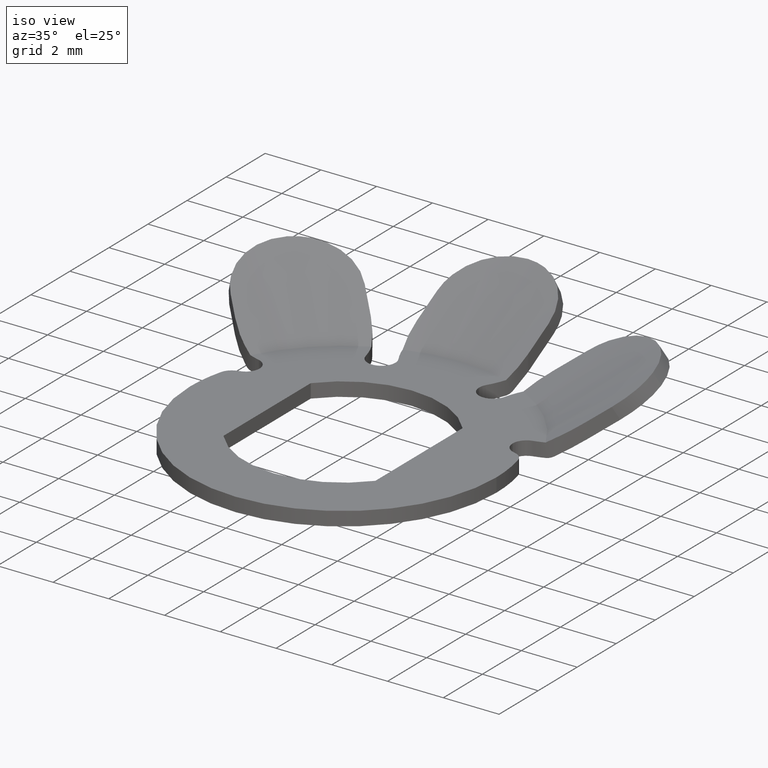
[diagram: clean part render]
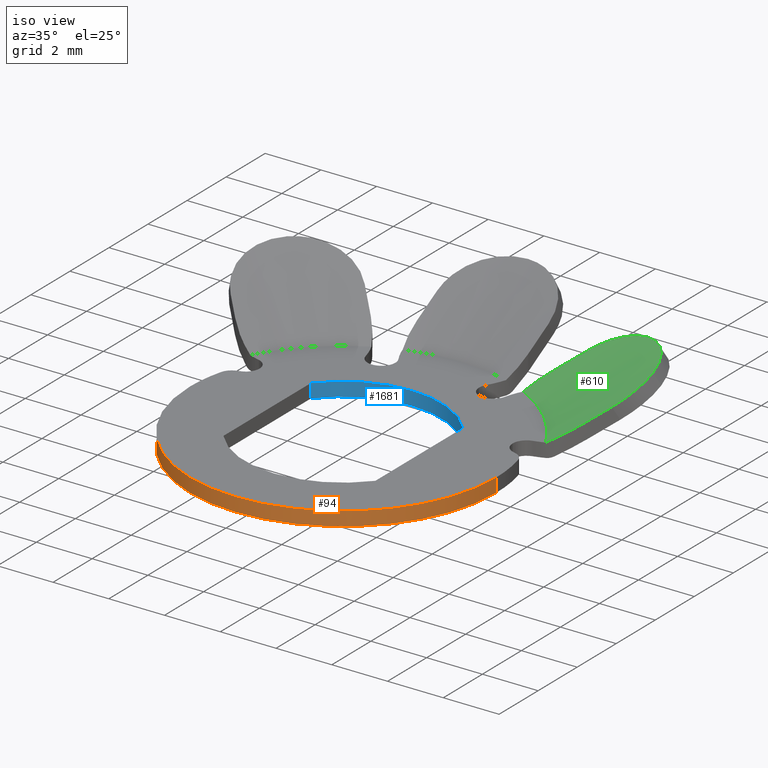
[diagram: same view with three faces highlighted in distinct colors, each labeled with its STEP entity id]
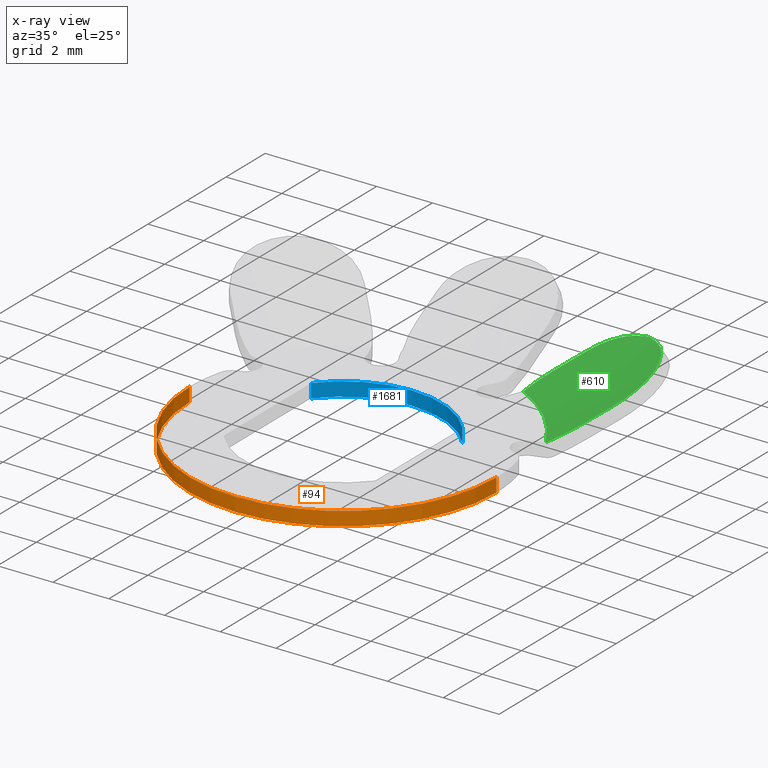
[diagram: x-ray of the same camera — body ghosted, the three highlighted faces saturated]
A machine part, iso view with three faces highlighted in distinct colors.
The next image is the same camera in x-ray (body ghosted, the three faces saturated) — at least one of them is partly hidden behind the body in this view.
Their STEP definitions:

[orange] entity #94 — the highlighted cylindrical surface (partial cylindrical patch) has radius 5.5 mm, axis along (0, 0, -1).
#94 = ADVANCED_FACE ( 'NONE', ( #911 ), #873, .T. ) ;
#138 = EDGE_CURVE ( 'NONE', #930, #230, #1302, .T. ) ;
#150 = CARTESIAN_POINT ( 'NONE',  ( -5.500000000000000000, 0.0000000000000000000, 0.5000000000000004400 ) ) ;
#166 = VERTEX_POINT ( 'NONE', #279 ) ;
#169 = DIRECTION ( 'NONE',  ( -1.000000000000000000, 0.0000000000000000000, 0.0000000000000000000 ) ) ;
#217 = VECTOR ( 'NONE', #335, 1000.000000000000000 ) ;
#230 = VERTEX_POINT ( 'NONE', #150 ) ;
#260 = ORIENTED_EDGE ( 'NONE', *, *, #1468, .F. ) ;
#279 = CARTESIAN_POINT ( 'NONE',  ( -5.500000000000000000, 0.0000000000000000000, 0.0000000000000000000 ) ) ;
#335 = DIRECTION ( 'NONE',  ( 0.0000000000000000000, 0.0000000000000000000, -1.000000000000000000 ) ) ;
#434 = CARTESIAN_POINT ( 'NONE',  ( 0.0000000000000000000, 0.0000000000000000000, 0.5000000000000004400 ) ) ;
#483 = ORIENTED_EDGE ( 'NONE', *, *, #138, .T. ) ;
#541 = DIRECTION ( 'NONE',  ( 0.0000000000000000000, 0.0000000000000000000, -1.000000000000000000 ) ) ;
#595 = DIRECTION ( 'NONE',  ( 0.0000000000000000000, 0.0000000000000000000, -1.000000000000000000 ) ) ;
#626 = DIRECTION ( 'NONE',  ( 0.0000000000000000000, 0.0000000000000000000, -1.000000000000000000 ) ) ;
#627 = CARTESIAN_POINT ( 'NONE',  ( 0.0000000000000000000, 0.0000000000000000000, 0.0000000000000000000 ) ) ;
#757 = DIRECTION ( 'NONE',  ( -1.000000000000000000, 0.0000000000000000000, 0.0000000000000000000 ) ) ;
#806 = CARTESIAN_POINT ( 'NONE',  ( 5.500000000000000000, 6.735557395310442000E-016, 2.500000000000000000 ) ) ;
#807 = CIRCLE ( 'NONE', #1609, 5.500000000000000000 ) ;
#849 = CARTESIAN_POINT ( 'NONE',  ( 5.500000000000000000, 6.735557395310442000E-016, 0.0000000000000000000 ) ) ;
#873 = CYLINDRICAL_SURFACE ( 'NONE', #1354, 5.500000000000000000 ) ;
#911 = FACE_OUTER_BOUND ( 'NONE', #959, .T. ) ;
#926 = LINE ( 'NONE', #1270, #217 ) ;
#930 = VERTEX_POINT ( 'NONE', #1337 ) ;
#936 = LINE ( 'NONE', #806, #973 ) ;
#959 = EDGE_LOOP ( 'NONE', ( #1672, #483, #1093, #260 ) ) ;
#973 = VECTOR ( 'NONE', #541, 1000.000000000000000 ) ;
#1093 = ORIENTED_EDGE ( 'NONE', *, *, #1094, .T. ) ;
#1094 = EDGE_CURVE ( 'NONE', #230, #166, #926, .T. ) ;
#1134 = VERTEX_POINT ( 'NONE', #849 ) ;
#1177 = CARTESIAN_POINT ( 'NONE',  ( 0.0000000000000000000, 0.0000000000000000000, 2.500000000000000000 ) ) ;
#1268 = AXIS2_PLACEMENT_3D ( 'NONE', #434, #595, #169 ) ;
#1270 = CARTESIAN_POINT ( 'NONE',  ( -5.500000000000000000, 0.0000000000000000000, 2.500000000000000000 ) ) ;
#1302 = CIRCLE ( 'NONE', #1268, 5.500000000000000000 ) ;
#1337 = CARTESIAN_POINT ( 'NONE',  ( 5.500000000000000000, 6.735557395310442000E-016, 0.5000000000000004400 ) ) ;
#1354 = AXIS2_PLACEMENT_3D ( 'NONE', #1177, #626, #1444 ) ;
#1389 = EDGE_CURVE ( 'NONE', #930, #1134, #936, .T. ) ;
#1444 = DIRECTION ( 'NONE',  ( -1.000000000000000000, 0.0000000000000000000, 0.0000000000000000000 ) ) ;
#1468 = EDGE_CURVE ( 'NONE', #1134, #166, #807, .T. ) ;
#1550 = DIRECTION ( 'NONE',  ( -0.0000000000000000000, -0.0000000000000000000, -1.000000000000000000 ) ) ;
#1609 = AXIS2_PLACEMENT_3D ( 'NONE', #627, #1550, #757 ) ;
#1672 = ORIENTED_EDGE ( 'NONE', *, *, #1389, .F. ) ;

[blue] entity #1681 — the highlighted cylindrical surface (partial cylindrical patch) has radius 3.525 mm, axis along (0, 0, -1).
#55 = DIRECTION ( 'NONE',  ( -1.000000000000000000, 8.881784197001252300E-016, 0.0000000000000000000 ) ) ;
#204 = CARTESIAN_POINT ( 'NONE',  ( 2.725000000000000100, 2.236067977499789800, 2.500000000000000000 ) ) ;
#227 = EDGE_CURVE ( 'NONE', #1373, #1472, #739, .T. ) ;
#377 = CARTESIAN_POINT ( 'NONE',  ( -2.725000000000000100, 2.236067977499789800, 0.5000000000000004400 ) ) ;
#380 = CIRCLE ( 'NONE', #574, 3.524999999999999900 ) ;
#398 = CARTESIAN_POINT ( 'NONE',  ( 0.0000000000000000000, 0.0000000000000000000, 0.5000000000000004400 ) ) ;
#408 = EDGE_CURVE ( 'NONE', #478, #1472, #1682, .T. ) ;
#466 = LINE ( 'NONE', #204, #1482 ) ;
#478 = VERTEX_POINT ( 'NONE', #1405 ) ;
#516 = CYLINDRICAL_SURFACE ( 'NONE', #1303, 3.524999999999999900 ) ;
#552 = DIRECTION ( 'NONE',  ( 0.0000000000000000000, 0.0000000000000000000, -1.000000000000000000 ) ) ;
#574 = AXIS2_PLACEMENT_3D ( 'NONE', #398, #1058, #55 ) ;
#599 = DIRECTION ( 'NONE',  ( 0.0000000000000000000, 0.0000000000000000000, 1.000000000000000000 ) ) ;
#672 = DIRECTION ( 'NONE',  ( 0.0000000000000000000, 0.0000000000000000000, -1.000000000000000000 ) ) ;
#722 = EDGE_LOOP ( 'NONE', ( #1269, #1053, #1203, #1308 ) ) ;
#732 = DIRECTION ( 'NONE',  ( 0.0000000000000000000, 0.0000000000000000000, -1.000000000000000000 ) ) ;
#739 = LINE ( 'NONE', #946, #1443 ) ;
#855 = EDGE_CURVE ( 'NONE', #1434, #478, #466, .T. ) ;
#884 = AXIS2_PLACEMENT_3D ( 'NONE', #1393, #599, #1518 ) ;
#941 = CARTESIAN_POINT ( 'NONE',  ( 0.0000000000000000000, 0.0000000000000000000, 2.500000000000000000 ) ) ;
#946 = CARTESIAN_POINT ( 'NONE',  ( -2.725000000000000100, 2.236067977499789800, 2.500000000000000000 ) ) ;
#977 = EDGE_CURVE ( 'NONE', #1434, #1373, #380, .T. ) ;
#1002 = CARTESIAN_POINT ( 'NONE',  ( -2.725000000000000100, 2.236067977499789800, 0.0000000000000000000 ) ) ;
#1053 = ORIENTED_EDGE ( 'NONE', *, *, #227, .T. ) ;
#1058 = DIRECTION ( 'NONE',  ( -0.0000000000000000000, -0.0000000000000000000, 1.000000000000000000 ) ) ;
#1066 = DIRECTION ( 'NONE',  ( -1.000000000000000000, 0.0000000000000000000, 0.0000000000000000000 ) ) ;
#1203 = ORIENTED_EDGE ( 'NONE', *, *, #408, .F. ) ;
#1269 = ORIENTED_EDGE ( 'NONE', *, *, #977, .T. ) ;
#1303 = AXIS2_PLACEMENT_3D ( 'NONE', #941, #672, #1066 ) ;
#1308 = ORIENTED_EDGE ( 'NONE', *, *, #855, .F. ) ;
#1373 = VERTEX_POINT ( 'NONE', #377 ) ;
#1375 = CARTESIAN_POINT ( 'NONE',  ( 2.725000000000000100, 2.236067977499789800, 0.5000000000000004400 ) ) ;
#1393 = CARTESIAN_POINT ( 'NONE',  ( 0.0000000000000000000, 0.0000000000000000000, 0.0000000000000000000 ) ) ;
#1405 = CARTESIAN_POINT ( 'NONE',  ( 2.725000000000000100, 2.236067977499789800, 0.0000000000000000000 ) ) ;
#1434 = VERTEX_POINT ( 'NONE', #1375 ) ;
#1443 = VECTOR ( 'NONE', #552, 1000.000000000000000 ) ;
#1472 = VERTEX_POINT ( 'NONE', #1002 ) ;
#1482 = VECTOR ( 'NONE', #732, 1000.000000000000000 ) ;
#1518 = DIRECTION ( 'NONE',  ( -1.000000000000000000, 0.0000000000000000000, 0.0000000000000000000 ) ) ;
#1572 = FACE_OUTER_BOUND ( 'NONE', #722, .T. ) ;
#1681 = ADVANCED_FACE ( 'NONE', ( #1572 ), #516, .F. ) ;
#1682 = CIRCLE ( 'NONE', #884, 3.524999999999999900 ) ;

[green] entity #610 — the highlighted conical surface has half-angle 60 deg.
#5 = EDGE_CURVE ( 'NONE', #1193, #1099, #866, .T. ) ;
#56 = B_SPLINE_CURVE_WITH_KNOTS ( 'NONE', 3,
 ( #242, #1717, #298, #1234 ),
 .UNSPECIFIED., .F., .F.,
 ( 4, 4 ),
 ( 0.0000000000000000000, 0.001400082595513167400 ),
 .UNSPECIFIED. ) ;
#101 = EDGE_CURVE ( 'NONE', #1230, #1166, #804, .T. ) ;
#110 = CARTESIAN_POINT ( 'NONE',  ( 7.133975669309075200, 4.413042508119345600, 1.878939104259615300 ) ) ;
#114 = CARTESIAN_POINT ( 'NONE',  ( 6.486776408870952100, 3.658349284124709800, 1.335397410873873500 ) ) ;
#119 = B_SPLINE_CURVE_WITH_KNOTS ( 'NONE', 3,
 ( #645, #1435, #912, #110, #1038, #244, #1170, #375 ),
 .UNSPECIFIED., .F., .F.,
 ( 4, 2, 2, 4 ),
 ( 1.388456241783856500E-018, 0.0004270417193235051300, 0.0008540834386470088500, 0.001708166877294016200 ),
 .UNSPECIFIED. ) ;
#137 = CARTESIAN_POINT ( 'NONE',  ( 5.812647621323899100, 7.229317186835465300, 2.391160194117952600 ) ) ;
#155 = CARTESIAN_POINT ( 'NONE',  ( 7.302310597265870000, 5.450670397720712000, 2.296872560922868600 ) ) ;
#167 = ORIENTED_EDGE ( 'NONE', *, *, #1419, .T. ) ;
#218 = DIRECTION ( 'NONE',  ( 1.000000000000000000, 0.0000000000000000000, 0.0000000000000000000 ) ) ;
#242 = CARTESIAN_POINT ( 'NONE',  ( 5.297832606445753700, 2.816552799803368600, 0.5000000000000007800 ) ) ;
#244 = CARTESIAN_POINT ( 'NONE',  ( 7.308805145617582400, 4.904521300404752500, 2.116768488797705400 ) ) ;
#247 = B_SPLINE_CURVE_WITH_KNOTS ( 'NONE', 3,
 ( #1084, #825, #427, #965 ),
 .UNSPECIFIED., .F., .F.,
 ( 4, 4 ),
 ( 0.008128351572784684900, 0.009314066995906887500 ),
 .UNSPECIFIED. ) ;
#254 = CARTESIAN_POINT ( 'NONE',  ( 7.302310597265870000, 5.450670397720712000, 2.296872560922868600 ) ) ;
#262 = CARTESIAN_POINT ( 'NONE',  ( 2.866975861198822500, 5.625744121824101100, 0.6813772037465388700 ) ) ;
#284 = CARTESIAN_POINT ( 'NONE',  ( 6.836249581038599900, 4.007822456292353200, 1.611083232691226600 ) ) ;
#298 = CARTESIAN_POINT ( 'NONE',  ( 6.018602666680511200, 3.190175541934273400, 0.9681396749600872400 ) ) ;
#308 = VERTEX_POINT ( 'NONE', #155 ) ;
#322 = CARTESIAN_POINT ( 'NONE',  ( 6.692130429902498200, 6.692130429902428900, 2.500000000000000000 ) ) ;
#323 = EDGE_CURVE ( 'NONE', #1055, #1706, #409, .T. ) ;
#326 = CONICAL_SURFACE ( 'NONE', #395, 9.464101615137755300, 1.047197551196598100 ) ;
#372 = ORIENTED_EDGE ( 'NONE', *, *, #101, .F. ) ;
#375 = CARTESIAN_POINT ( 'NONE',  ( 7.302310597265870000, 5.450670397720712000, 2.296872560922868600 ) ) ;
#395 = AXIS2_PLACEMENT_3D ( 'NONE', #467, #1675, #218 ) ;
#402 = FACE_OUTER_BOUND ( 'NONE', #730, .T. ) ;
#409 = B_SPLINE_CURVE_WITH_KNOTS ( 'NONE', 3,
 ( #701, #1460, #537, #1087, #938, #1063, #137, #566, #1228, #1210, #433, #1365, #571, #1493 ),
 .UNSPECIFIED., .F., .F.,
 ( 4, 2, 2, 2, 2, 2, 4 ),
 ( 3.234049866015733600E-017, 0.0003909204682639600600, 0.0007818409365278876900, 0.001172761404791815300, 0.001563681873055743100, 0.002345522809583598600, 0.003127363746111454100 ),
 .UNSPECIFIED. ) ;
#427 = CARTESIAN_POINT ( 'NONE',  ( 3.763739811491806800, 6.592166936237978400, 1.418242223980519500 ) ) ;
#433 = CARTESIAN_POINT ( 'NONE',  ( 4.817973679907129100, 7.288826710052037000, 2.079678750162289100 ) ) ;
#467 = CARTESIAN_POINT ( 'NONE',  ( 0.0000000000000000000, 0.0000000000000000000, 2.500000000000000000 ) ) ;
#518 = CARTESIAN_POINT ( 'NONE',  ( 7.208134443198748200, 5.904424937912369700, 2.413881349729609200 ) ) ;
#536 = CARTESIAN_POINT ( 'NONE',  ( 7.002211996017195800, 6.325048091059435300, 2.482177619468893100 ) ) ;
#537 = CARTESIAN_POINT ( 'NONE',  ( 6.498326528336054500, 6.869066046199808500, 2.494706437151255100 ) ) ;
#566 = CARTESIAN_POINT ( 'NONE',  ( 5.565413308799438000, 7.289342695961993400, 2.330390177168582000 ) ) ;
#571 = CARTESIAN_POINT ( 'NONE',  ( 4.171023761898213800, 6.999450886644381400, 1.740022774548622100 ) ) ;
#577 = DIRECTION ( 'NONE',  ( -0.0000000000000000000, -0.0000000000000000000, 1.000000000000000000 ) ) ;
#580 = AXIS2_PLACEMENT_3D ( 'NONE', #1498, #577, #1239 ) ;
#601 = CARTESIAN_POINT ( 'NONE',  ( 6.661574828720372200, 3.833147703974127300, 1.473078929022445300 ) ) ;
#610 = ADVANCED_FACE ( 'NONE', ( #402 ), #326, .F. ) ;
#616 = CARTESIAN_POINT ( 'NONE',  ( 6.692130429902498200, 6.692130429902428900, 2.500000000000000000 ) ) ;
#644 = EDGE_CURVE ( 'NONE', #1383, #1166, #56, .T. ) ;
#645 = CARTESIAN_POINT ( 'NONE',  ( 6.836249581038599900, 4.007822456292353200, 1.611083232691226600 ) ) ;
#673 = EDGE_CURVE ( 'NONE', #1383, #1099, #1384, .T. ) ;
#674 = CARTESIAN_POINT ( 'NONE',  ( 5.297832606445753700, 2.816552799803368600, 0.5000000000000007800 ) ) ;
#692 = ORIENTED_EDGE ( 'NONE', *, *, #5, .T. ) ;
#701 = CARTESIAN_POINT ( 'NONE',  ( 6.692130429902498200, 6.692130429902428900, 2.500000000000000000 ) ) ;
#718 = CARTESIAN_POINT ( 'NONE',  ( 7.275543753036838100, 5.676380040437751800, 2.362437671308550000 ) ) ;
#730 = EDGE_LOOP ( 'NONE', ( #793, #692, #1149, #1476, #372, #1076, #167, #1006 ) ) ;
#741 = B_SPLINE_CURVE_WITH_KNOTS ( 'NONE', 3,
 ( #254, #718, #518, #536, #1510, #322 ),
 .UNSPECIFIED., .F., .F.,
 ( 4, 2, 4 ),
 ( 0.001708166877294016200, 0.002417748612013089500, 0.003127330346732163200 ),
 .UNSPECIFIED. ) ;
#793 = ORIENTED_EDGE ( 'NONE', *, *, #1247, .F. ) ;
#804 = B_SPLINE_CURVE_WITH_KNOTS ( 'NONE', 3,
 ( #1437, #601, #114, #1314 ),
 .UNSPECIFIED., .F., .F.,
 ( 4, 4 ),
 ( 0.01004320924463480800, 0.01089208507440606200 ),
 .UNSPECIFIED. ) ;
#825 = CARTESIAN_POINT ( 'NONE',  ( 3.519424079007270400, 6.347851203753443800, 1.226028770134871100 ) ) ;
#866 = B_SPLINE_CURVE_WITH_KNOTS ( 'NONE', 3,
 ( #1590, #1704, #262, #1309 ),
 .UNSPECIFIED., .F., .F.,
 ( 4, 4 ),
 ( 4.135983411810389200E-015, 0.001078226562948477400 ),
 .UNSPECIFIED. ) ;
#912 = CARTESIAN_POINT ( 'NONE',  ( 7.002619488829525500, 4.196047887799792000, 1.749003333920243100 ) ) ;
#938 = CARTESIAN_POINT ( 'NONE',  ( 6.169752947084437400, 7.081698664477183800, 2.458100629403649600 ) ) ;
#965 = CARTESIAN_POINT ( 'NONE',  ( 4.007822456290700300, 6.836249581036870600, 1.611083232689883200 ) ) ;
#1006 = ORIENTED_EDGE ( 'NONE', *, *, #323, .T. ) ;
#1008 = CARTESIAN_POINT ( 'NONE',  ( 2.724131710075543600, 5.345942987552420300, 0.5000000000000007800 ) ) ;
#1038 = CARTESIAN_POINT ( 'NONE',  ( 7.188402649369383100, 4.532478070404931000, 1.942006156721003200 ) ) ;
#1055 = VERTEX_POINT ( 'NONE', #616 ) ;
#1063 = CARTESIAN_POINT ( 'NONE',  ( 5.933555887890864100, 7.187868214203497500, 2.416637462941135800 ) ) ;
#1076 = ORIENTED_EDGE ( 'NONE', *, *, #1541, .T. ) ;
#1084 = CARTESIAN_POINT ( 'NONE',  ( 3.274754878398204600, 6.103182003144378400, 1.034766978064505700 ) ) ;
#1087 = CARTESIAN_POINT ( 'NONE',  ( 6.284547061059294400, 7.016845564140999700, 2.473884944639342700 ) ) ;
#1099 = VERTEX_POINT ( 'NONE', #1008 ) ;
#1108 = CARTESIAN_POINT ( 'NONE',  ( 3.274754878398204600, 6.103182003144378400, 1.034766978064505700 ) ) ;
#1149 = ORIENTED_EDGE ( 'NONE', *, *, #673, .F. ) ;
#1166 = VERTEX_POINT ( 'NONE', #1562 ) ;
#1170 = CARTESIAN_POINT ( 'NONE',  ( 7.334528335184263200, 5.178996454670473400, 2.217955542356088800 ) ) ;
#1193 = VERTEX_POINT ( 'NONE', #1108 ) ;
#1210 = CARTESIAN_POINT ( 'NONE',  ( 5.065527710298902700, 7.325760527145655000, 2.176683038389087200 ) ) ;
#1228 = CARTESIAN_POINT ( 'NONE',  ( 5.438393394767073700, 7.307696177652817800, 2.294786471088512400 ) ) ;
#1230 = VERTEX_POINT ( 'NONE', #284 ) ;
#1234 = CARTESIAN_POINT ( 'NONE',  ( 6.311812627318671400, 3.483385502572430500, 1.198147504505424000 ) ) ;
#1239 = DIRECTION ( 'NONE',  ( 1.000000000000000000, 0.0000000000000000000, 0.0000000000000000000 ) ) ;
#1247 = EDGE_CURVE ( 'NONE', #1193, #1706, #247, .T. ) ;
#1309 = CARTESIAN_POINT ( 'NONE',  ( 2.724131710075543600, 5.345942987552420300, 0.5000000000000007800 ) ) ;
#1314 = CARTESIAN_POINT ( 'NONE',  ( 6.311812627318671400, 3.483385502572430500, 1.198147504505424000 ) ) ;
#1365 = CARTESIAN_POINT ( 'NONE',  ( 4.373011118224874300, 7.126238048402692400, 1.862415103067119400 ) ) ;
#1383 = VERTEX_POINT ( 'NONE', #674 ) ;
#1384 = CIRCLE ( 'NONE', #580, 6.000000000000000000 ) ;
#1419 = EDGE_CURVE ( 'NONE', #308, #1055, #741, .T. ) ;
#1435 = CARTESIAN_POINT ( 'NONE',  ( 6.925394660831431200, 4.096967536085183600, 1.681513586815301500 ) ) ;
#1437 = CARTESIAN_POINT ( 'NONE',  ( 6.836249581038599900, 4.007822456292353200, 1.611083232691226600 ) ) ;
#1460 = CARTESIAN_POINT ( 'NONE',  ( 6.598658492102449800, 6.785602367702477300, 2.499999999999999600 ) ) ;
#1474 = CARTESIAN_POINT ( 'NONE',  ( 4.007822456290700300, 6.836249581036870600, 1.611083232689883200 ) ) ;
#1476 = ORIENTED_EDGE ( 'NONE', *, *, #644, .T. ) ;
#1493 = CARTESIAN_POINT ( 'NONE',  ( 4.007822456290700300, 6.836249581036870600, 1.611083232689883200 ) ) ;
#1498 = CARTESIAN_POINT ( 'NONE',  ( 0.0000000000000000000, 0.0000000000000000000, 0.5000000000000007800 ) ) ;
#1510 = CARTESIAN_POINT ( 'NONE',  ( 6.861799937811111900, 6.522460921993815200, 2.500000000000000900 ) ) ;
#1541 = EDGE_CURVE ( 'NONE', #1230, #308, #119, .T. ) ;
#1562 = CARTESIAN_POINT ( 'NONE',  ( 6.311812627318671400, 3.483385502572430500, 1.198147504505424000 ) ) ;
#1590 = CARTESIAN_POINT ( 'NONE',  ( 3.274754878398204600, 6.103182003144378400, 1.034766978064505700 ) ) ;
#1675 = DIRECTION ( 'NONE',  ( -0.0000000000000000000, -0.0000000000000000000, 1.000000000000000000 ) ) ;
#1704 = CARTESIAN_POINT ( 'NONE',  ( 3.050220072634177700, 5.878647197380352000, 0.8592445615620172300 ) ) ;
#1706 = VERTEX_POINT ( 'NONE', #1474 ) ;
#1717 = CARTESIAN_POINT ( 'NONE',  ( 5.679972728712697500, 2.968323222470736800, 0.7359422520164341500 ) ) ;